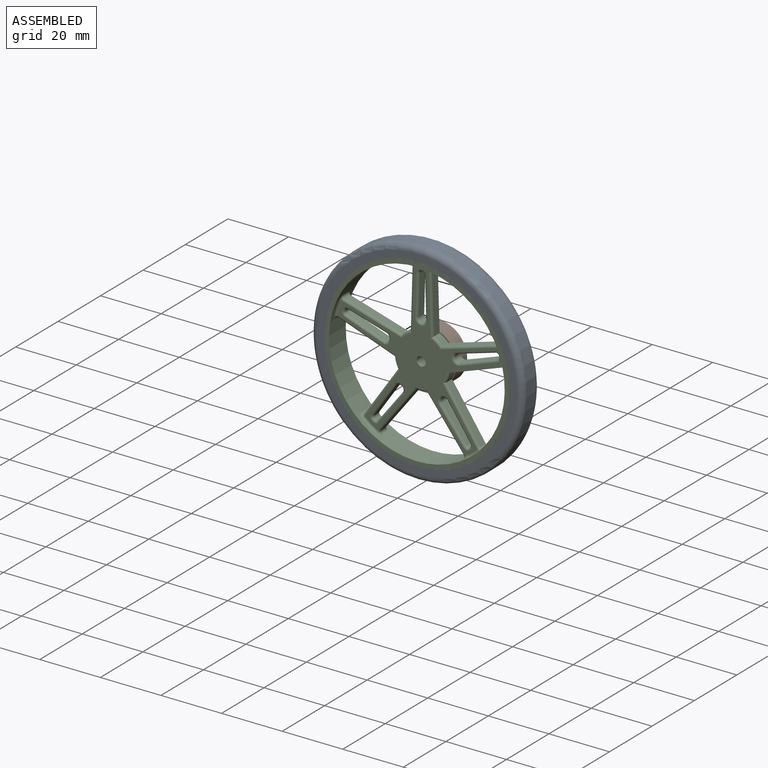
[diagram: assembled view]
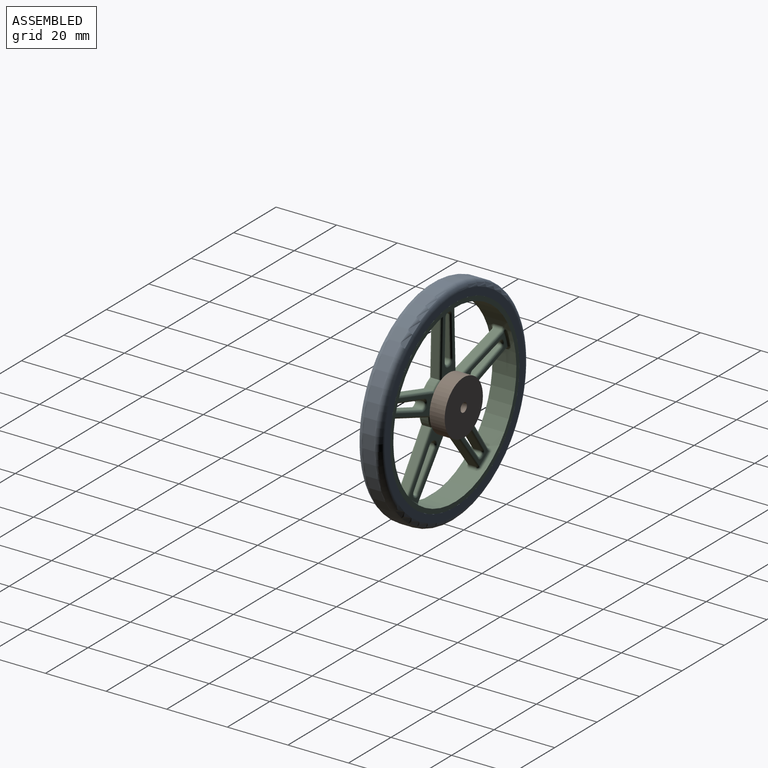
[diagram: assembled view, second angle]
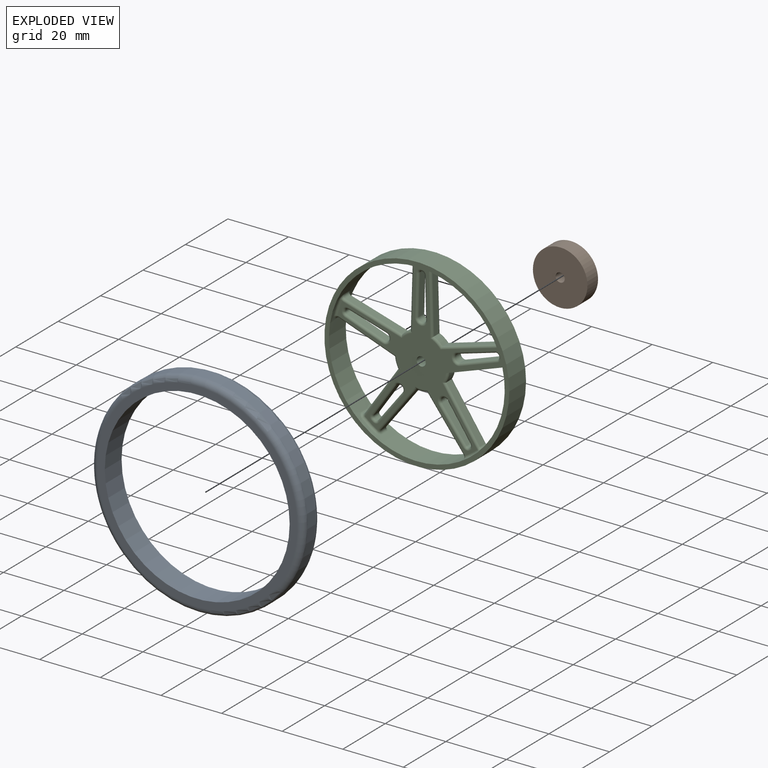
[diagram: exploded view]
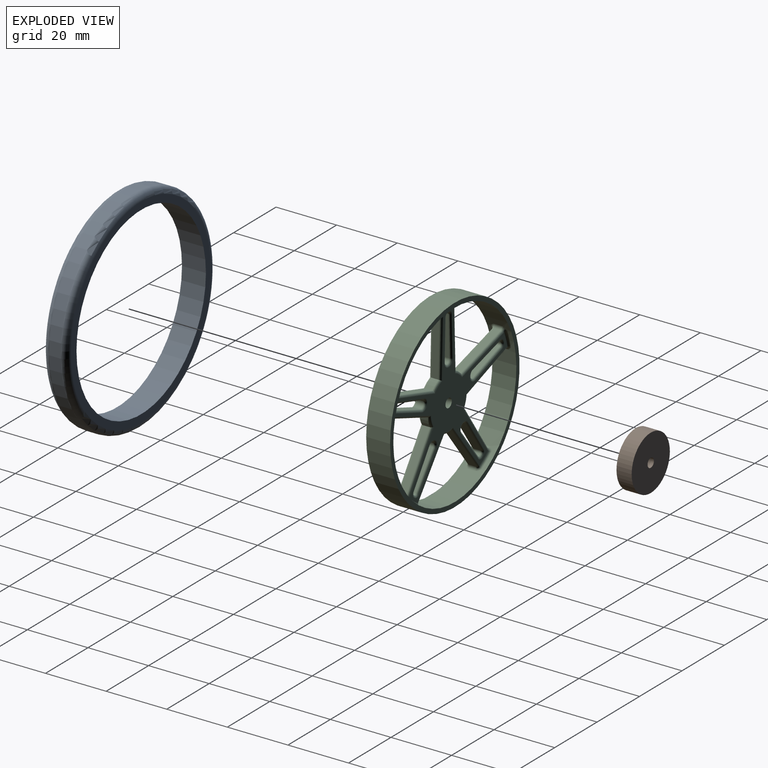
[diagram: exploded view, second angle]
ASSEMBLY  parts=3 mates=2
PART A: 6 faces, bbox 75.8x7.9x75.8 mm
  f0: cylinder r=30.5mm len=61mm, axis (0,1,0), area 1513.9mm2, adj f2,f3
  f1: cylinder r=35mm len=70mm, axis (0,1,0), area 857.7mm2, adj f4,f5
  f2: plane 66x66mm, normal (0,-1,0), area 498.7mm2, adj f0,f5
  f3: plane 66x66mm, normal (0,1,0), area 498.7mm2, adj f0,f4
  f4: torus R=33mm, axis (0,-1,0), area 676.5mm2, adj f1,f3
  f5: torus R=33mm, axis (0,-1,0), area 676.5mm2, adj f1,f2
PART B: 4 faces, bbox 18x5x18 mm
  f0: cylinder r=9mm len=18mm, axis (0,-1,0), area 282.7mm2, adj f2,f3
  f1: cylinder r=1.5mm len=5mm, axis (0,-1,0), area 47.1mm2, adj f2,f3
  f2: plane 18x18mm, normal (0,1,0), area 247.4mm2, adj f0,f1
  f3: plane 18x18mm, normal (0,-1,0), area 247.4mm2, adj f0,f1
PART C: 229 faces, bbox 61.2x8.1x61.2 mm
  f0: cylinder r=29mm len=58mm, axis (0,1,0), area 1228.5mm2, adj f2,f3,f4,f5,f9,f10,f14,f15
  f1: cylinder r=30.5mm len=61mm, axis (0,1,0), area 1513.9mm2, adj f2,f3
  f2: plane 61x61mm, normal (0,-1,0), area 280.4mm2, adj f0,f1
  f3: plane 61x61mm, normal (0,1,0), area 280.4mm2, adj f0,f1
  f4: cylinder r=0.94mm len=3.8mm, axis (0,1,0), area 4.8mm2, adj f0,f69,f70,f104,f146,f148
  f5: cylinder r=0.94mm len=2.3mm, axis (0,1,0), area 3.4mm2, adj f0,f6,f106,f108,f140,f142
  f6: plane 18.85x5.52mm, normal (-0.28,0,0.96), area 45.2mm2, adj f5,f7,f107,f138
  f7: cylinder r=9mm len=2.87mm, axis (0,1,0), area 8.2mm2, adj f6,f8,f105,f136
  f8: plane 19.63x2.3mm, normal (1,0,0.03), area 45.2mm2, adj f7,f9,f103,f134
  f9: cylinder r=0.94mm len=2.3mm, axis (0,1,0), area 3.4mm2, adj f0,f8,f101,f102,f130,f132
  f10: cylinder r=0.94mm len=2.3mm, axis (0,1,0), area 3.4mm2, adj f0,f11,f98,f99,f124,f126
  f11: plane 19.63x2.3mm, normal (-1,0,0.03), area 45.2mm2, adj f10,f12,f97,f122
  f12: cylinder r=9mm len=2.87mm, axis (0,1,0), area 8.2mm2, adj f11,f13,f96,f120
  f13: plane 18.85x5.52mm, normal (0.28,0,0.96), area 45.2mm2, adj f12,f14,f95,f118
  f14: cylinder r=0.94mm len=2.3mm, axis (0,1,0), area 3.4mm2, adj f0,f13,f93,f94,f114,f116
  f15: cylinder r=0.94mm len=2.3mm, axis (0,1,0), area 3.4mm2, adj f0,f16,f90,f91,f109,f110
  f16: plane 18.5x6.61mm, normal (-0.34,0,-0.94), area 45.2mm2, adj f15,f17,f89,f111
  f17: cylinder r=9mm len=3.38mm, axis (0,1,0), area 8.2mm2, adj f16,f18,f88,f113
  f18: plane 16.22x11.08mm, normal (-0.83,0,0.56), area 45.2mm2, adj f17,f19,f87,f115
  f19: cylinder r=0.94mm len=2.3mm, axis (0,1,0), area 3.4mm2, adj f0,f18,f85,f86,f117,f119
  f20: cylinder r=0.94mm len=2.3mm, axis (0,1,0), area 3.4mm2, adj f0,f21,f82,f83,f123,f125
  f21: plane 15.55x12mm, normal (0.79,0,-0.61), area 45.2mm2, adj f20,f22,f81,f127
  f22: cylinder r=9mm len=3.55mm, axis (0,1,0), area 8.2mm2, adj f21,f23,f80,f129
  f23: plane 15.55x12mm, normal (-0.79,0,-0.61), area 45.2mm2, adj f22,f24,f79,f131
  f24: cylinder r=0.94mm len=2.3mm, axis (0,1,0), area 3.4mm2, adj f0,f23,f77,f78,f133,f135
  f25: cylinder r=0.94mm len=2.3mm, axis (0,1,0), area 3.4mm2, adj f0,f26,f74,f75,f139,f141
  f26: plane 16.22x11.08mm, normal (0.83,0,0.56), area 45.2mm2, adj f25,f27,f73,f143
  f27: cylinder r=9mm len=3.38mm, axis (0,1,0), area 8.2mm2, adj f26,f69,f72,f145
  f28: plane 13.21x2.3mm, normal (-1,0,-0.03), area 30.4mm2, adj f29,f63,f149,f196
  f29: cylinder r=1.3mm len=2.3mm, axis (0,1,0), area 4.8mm2, adj f28,f30,f150,f194
  f30: cylinder r=10.61mm len=2.3mm, axis (0,1,0), area 0.1mm2, adj f29,f31,f152,f192
  f31: cylinder r=1.3mm len=2.3mm, axis (0,1,0), area 4.8mm2, adj f30,f32,f154,f190
  f32: plane 13.21x2.3mm, normal (1,0,-0.03), area 30.4mm2, adj f31,f33,f156,f189
  f33: cylinder r=0.8mm len=2.3mm, axis (0,1,0), area 2.8mm2, adj f32,f34,f155,f191
  f34: cylinder r=26.7mm len=2.3mm, axis (0,1,0), area 0.6mm2, adj f33,f63,f153,f193
  f35: cylinder r=0.8mm len=2.3mm, axis (0,1,0), area 2.8mm2, adj f36,f64,f163,f201
  f36: cylinder r=26.7mm len=2.3mm, axis (0,1,0), area 0.6mm2, adj f35,f37,f161,f203
  f37: cylinder r=0.8mm len=2.3mm, axis (0,1,0), area 2.8mm2, adj f36,f38,f159,f204
  f38: plane 12.68x3.72mm, normal (-0.28,0,-0.96), area 30.4mm2, adj f37,f39,f157,f202
  f39: cylinder r=1.3mm len=2.3mm, axis (0,1,0), area 4.8mm2, adj f38,f40,f158,f200
  f40: cylinder r=10.61mm len=2.3mm, axis (0,1,0), area 0.1mm2, adj f39,f41,f160,f198
  f41: cylinder r=1.3mm len=2.3mm, axis (0,1,0), area 4.8mm2, adj f40,f64,f162,f197
  f42: cylinder r=0.8mm len=2.3mm, axis (0,1,0), area 2.8mm2, adj f43,f65,f171,f207
  f43: cylinder r=26.7mm len=2.3mm, axis (0,1,0), area 0.6mm2, adj f42,f44,f169,f209
  f44: cylinder r=0.8mm len=2.3mm, axis (0,1,0), area 2.8mm2, adj f43,f45,f167,f211
  f45: plane 10.91x7.45mm, normal (0.83,0,-0.56), area 30.4mm2, adj f44,f46,f165,f212
  f46: cylinder r=1.3mm len=2.3mm, axis (0,1,0), area 4.8mm2, adj f45,f47,f166,f210
  f47: cylinder r=10.61mm len=2.3mm, axis (0,1,0), area 0.1mm2, adj f46,f48,f168,f208
  f48: cylinder r=1.3mm len=2.3mm, axis (0,1,0), area 4.8mm2, adj f47,f65,f170,f206
  f49: cylinder r=0.8mm len=2.3mm, axis (0,1,0), area 2.8mm2, adj f50,f66,f175,f215
  f50: cylinder r=26.7mm len=2.3mm, axis (0,1,0), area 0.6mm2, adj f49,f51,f177,f217
  f51: cylinder r=0.8mm len=2.3mm, axis (0,1,0), area 2.8mm2, adj f50,f52,f179,f219
  f52: plane 10.46x8.08mm, normal (0.79,0,0.61), area 30.4mm2, adj f51,f53,f180,f220
  f53: cylinder r=1.3mm len=2.3mm, axis (0,1,0), area 4.8mm2, adj f52,f54,f178,f218
  f54: cylinder r=10.61mm len=2.3mm, axis (0,1,0), area 0.1mm2, adj f53,f55,f176,f216
  f55: cylinder r=1.3mm len=2.3mm, axis (0,1,0), area 4.8mm2, adj f54,f66,f174,f214
  f56: cylinder r=0.8mm len=2.3mm, axis (0,1,0), area 2.8mm2, adj f57,f67,f187,f223
  f57: cylinder r=26.7mm len=2.3mm, axis (0,1,0), area 0.6mm2, adj f56,f58,f185,f225
  f58: cylinder r=0.8mm len=2.3mm, axis (0,1,0), area 2.8mm2, adj f57,f59,f183,f227
  f59: plane 12.44x4.45mm, normal (-0.34,0,0.94), area 30.4mm2, adj f58,f60,f181,f228
  f60: cylinder r=1.3mm len=2.3mm, axis (0,1,0), area 4.8mm2, adj f59,f61,f182,f226
  f61: cylinder r=10.61mm len=2.3mm, axis (0,1,0), area 0.1mm2, adj f60,f62,f184,f224
  f62: cylinder r=1.3mm len=2.3mm, axis (0,1,0), area 4.8mm2, adj f61,f67,f186,f222
  f63: cylinder r=0.8mm len=2.3mm, axis (0,1,0), area 2.8mm2, adj f28,f34,f151,f195
  f64: plane 12.44x4.45mm, normal (0.34,0,0.94), area 30.4mm2, adj f35,f41,f164,f199
  f65: plane 10.46x8.08mm, normal (-0.79,0,0.61), area 30.4mm2, adj f42,f48,f172,f205
  f66: plane 10.91x7.45mm, normal (-0.83,0,-0.56), area 30.4mm2, adj f49,f55,f173,f213
  f67: plane 12.68x3.72mm, normal (0.28,0,-0.96), area 30.4mm2, adj f56,f62,f188,f221
  f68: cylinder r=1.5mm len=3.8mm, axis (0,1,0), area 35.8mm2, adj f70,f71
  f69: plane 19.47x7.07mm, normal (0.34,0,-0.94), area 60mm2, adj f4,f27,f70,f72,f147
  f70: plane 55.22x52.47mm, normal (0,-1,0), area 466mm2, adj f4,f68,f69,f72,f73,f74,f76,f78
  f71: plane 55.06x52.47mm, normal (0,1,0), area 450.5mm2, adj f68,f109,f111,f112,f113,f115,f116,f117
  f72: torus R=8.25mm, axis (0,-1,0), area 4.1mm2, adj f27,f69,f70,f73
  f73: cylinder r=0.75mm len=17.06mm, axis (0.56,0,-0.83), area 23.4mm2, adj f26,f70,f72,f74
  f74: torus R=1.69mm, axis (0,-1,0), area 0.7mm2, adj f25,f70,f73,f75
  f75: bspline ~1.85x1.77mm, area 1.6mm2, adj f0,f25,f74,f76
  f76: torus R=28.25mm, axis (0,-1,0), area 5.9mm2, adj f0,f70,f75,f77
  f77: bspline ~1.82x1.75mm, area 1.6mm2, adj f0,f24,f76,f78
  f78: torus R=1.69mm, axis (0,-1,0), area 0.7mm2, adj f24,f70,f77,f79
  f79: cylinder r=0.75mm len=16.41mm, axis (-0.61,0,0.79), area 23.4mm2, adj f23,f70,f78,f80
  f80: torus R=8.25mm, axis (0,-1,0), area 4.6mm2, adj f22,f70,f79,f81
  f81: cylinder r=0.75mm len=16.41mm, axis (-0.61,0,-0.79), area 23.4mm2, adj f21,f70,f80,f82
  f82: torus R=1.69mm, axis (0,-1,0), area 0.7mm2, adj f20,f70,f81,f83
  f83: bspline ~1.77x1.54mm, area 1.6mm2, adj f0,f20,f82,f84
  f84: torus R=28.25mm, axis (0,-1,0), area 5.9mm2, adj f0,f70,f83,f85
  f85: bspline ~1.87x1.82mm, area 1.6mm2, adj f0,f19,f84,f86
  f86: torus R=1.69mm, axis (0,-1,0), area 0.7mm2, adj f19,f70,f85,f87
  f87: cylinder r=0.75mm len=17.06mm, axis (0.56,0,0.83), area 23.4mm2, adj f18,f70,f86,f88
  f88: torus R=8.25mm, axis (0,-1,0), area 4.6mm2, adj f17,f70,f87,f89
  f89: cylinder r=0.75mm len=19.22mm, axis (-0.94,0,0.34), area 23.4mm2, adj f16,f70,f88,f90
  f90: torus R=1.69mm, axis (0,-1,0), area 0.7mm2, adj f15,f70,f89,f91
  f91: bspline ~1.77x1.73mm, area 1.6mm2, adj f0,f15,f90,f92
  f92: torus R=28.25mm, axis (0,-1,0), area 5.9mm2, adj f0,f70,f91,f93
  f93: bspline ~1.98x1.82mm, area 1.6mm2, adj f0,f14,f92,f94
  f94: torus R=1.69mm, axis (0,-1,0), area 0.7mm2, adj f14,f70,f93,f95
  f95: cylinder r=0.75mm len=19.55mm, axis (0.96,0,-0.28), area 23.4mm2, adj f13,f70,f94,f96
  f96: torus R=8.25mm, axis (0,-1,0), area 4.6mm2, adj f12,f70,f95,f97
  f97: cylinder r=0.75mm len=20.16mm, axis (0.03,0,1), area 23.4mm2, adj f11,f70,f96,f98
  f98: torus R=1.69mm, axis (0,-1,0), area 0.7mm2, adj f10,f70,f97,f99
  f99: bspline ~1.97x1.77mm, area 1.6mm2, adj f0,f10,f98,f100
  f100: torus R=28.25mm, axis (0,-1,0), area 5.9mm2, adj f0,f70,f99,f101
  f101: bspline ~2x1.82mm, area 1.6mm2, adj f0,f9,f100,f102
  f102: torus R=1.69mm, axis (0,-1,0), area 0.7mm2, adj f9,f70,f101,f103
  f103: cylinder r=0.75mm len=20.16mm, axis (0.03,0,-1), area 23.4mm2, adj f8,f70,f102,f105
  f104: torus R=28.25mm, axis (0,-1,0), area 7.3mm2, adj f0,f4,f70,f106
  f105: torus R=8.25mm, axis (0,-1,0), area 4.6mm2, adj f7,f70,f103,f107
  f106: bspline ~1.86x1.77mm, area 1.6mm2, adj f0,f5,f104,f108
  f107: cylinder r=0.75mm len=19.55mm, axis (0.96,0,0.28), area 23.4mm2, adj f6,f70,f105,f108
  f108: torus R=1.69mm, axis (0,-1,0), area 0.7mm2, adj f5,f70,f106,f107
  f109: torus R=1.69mm, axis (0,-1,0), area 0.7mm2, adj f15,f71,f110,f111
  f110: bspline ~1.97x1.82mm, area 1.6mm2, adj f0,f15,f109,f112
  f111: cylinder r=0.75mm len=19.22mm, axis (0.94,0,-0.34), area 23.4mm2, adj f16,f71,f109,f113
  f112: torus R=28.25mm, axis (0,-1,0), area 5.9mm2, adj f0,f71,f110,f114
  f113: torus R=8.25mm, axis (0,-1,0), area 4.6mm2, adj f17,f71,f111,f115
  f114: bspline ~1.86x1.77mm, area 1.6mm2, adj f0,f14,f112,f116
  f115: cylinder r=0.75mm len=17.06mm, axis (-0.56,0,-0.83), area 23.4mm2, adj f18,f71,f113,f117
  f116: torus R=1.69mm, axis (0,-1,0), area 0.7mm2, adj f14,f71,f114,f118
  f117: torus R=1.69mm, axis (0,-1,0), area 0.7mm2, adj f19,f71,f115,f119
  f118: cylinder r=0.75mm len=19.55mm, axis (-0.96,0,0.28), area 23.4mm2, adj f13,f71,f116,f120
  f119: bspline ~1.85x1.77mm, area 1.6mm2, adj f0,f19,f117,f121
  f120: torus R=8.25mm, axis (0,-1,0), area 4.6mm2, adj f12,f71,f118,f122
  f121: torus R=28.25mm, axis (0,-1,0), area 5.9mm2, adj f0,f71,f119,f123
  f122: cylinder r=0.75mm len=20.16mm, axis (-0.03,0,-1), area 23.4mm2, adj f11,f71,f120,f124
  f123: bspline ~1.82x1.75mm, area 1.6mm2, adj f0,f20,f121,f125
  f124: torus R=1.69mm, axis (0,-1,0), area 0.7mm2, adj f10,f71,f122,f126
  f125: torus R=1.69mm, axis (0,-1,0), area 0.7mm2, adj f20,f71,f123,f127
  f126: bspline ~2x1.82mm, area 1.6mm2, adj f0,f10,f124,f128
  f127: cylinder r=0.75mm len=16.41mm, axis (0.61,0,0.79), area 23.4mm2, adj f21,f71,f125,f129
  f128: torus R=28.25mm, axis (0,-1,0), area 5.9mm2, adj f0,f71,f126,f130
  f129: torus R=8.25mm, axis (0,-1,0), area 4.6mm2, adj f22,f71,f127,f131
  f130: bspline ~1.97x1.77mm, area 1.6mm2, adj f0,f9,f128,f132
  f131: cylinder r=0.75mm len=16.41mm, axis (0.61,0,-0.79), area 23.4mm2, adj f23,f71,f129,f133
  f132: torus R=1.69mm, axis (0,-1,0), area 0.7mm2, adj f9,f71,f130,f134
  f133: torus R=1.69mm, axis (0,-1,0), area 0.7mm2, adj f24,f71,f131,f135
  f134: cylinder r=0.75mm len=20.16mm, axis (-0.03,0,1), area 23.4mm2, adj f8,f71,f132,f136
  f135: bspline ~1.77x1.54mm, area 1.6mm2, adj f0,f24,f133,f137
  f136: torus R=8.25mm, axis (0,-1,0), area 4.6mm2, adj f7,f71,f134,f138
  f137: torus R=28.25mm, axis (0,-1,0), area 5.9mm2, adj f0,f71,f135,f139
  f138: cylinder r=0.75mm len=19.55mm, axis (-0.96,0,-0.28), area 23.4mm2, adj f6,f71,f136,f140
  f139: bspline ~1.87x1.82mm, area 1.6mm2, adj f0,f25,f137,f141
  f140: torus R=1.69mm, axis (0,-1,0), area 0.7mm2, adj f5,f71,f138,f142
  f141: torus R=1.69mm, axis (0,-1,0), area 0.7mm2, adj f25,f71,f139,f143
  f142: bspline ~1.98x1.82mm, area 1.6mm2, adj f0,f5,f140,f144
  f143: cylinder r=0.75mm len=17.06mm, axis (-0.56,0,0.83), area 23.4mm2, adj f26,f71,f141,f145
  f144: torus R=28.25mm, axis (0,-1,0), area 5.9mm2, adj f0,f71,f142,f146
  f145: torus R=8.25mm, axis (0,-1,0), area 4.6mm2, adj f27,f71,f143,f147
  f146: bspline ~1.77x1.73mm, area 1.6mm2, adj f0,f4,f144,f148
  f147: cylinder r=0.75mm len=19.22mm, axis (0.94,0,0.34), area 23.4mm2, adj f69,f71,f145,f148
  f148: torus R=1.69mm, axis (0,-1,0), area 0.7mm2, adj f4,f71,f146,f147
  f149: cylinder r=0.75mm len=13.23mm, axis (0.03,0,-1), area 15.6mm2, adj f28,f71,f150,f151
  f150: torus R=2.05mm, axis (0,-1,0), area 3mm2, adj f29,f71,f149,f152
  f151: torus R=1.55mm, axis (0,-1,0), area 1.9mm2, adj f63,f71,f149,f153
  f152: torus R=9.86mm, axis (0,-1,0), area 0mm2, adj f30,f71,f150,f154
  f153: torus R=27.45mm, axis (0,-1,0), area 0.3mm2, adj f34,f71,f151,f155
  f154: torus R=2.05mm, axis (0,-1,0), area 3mm2, adj f31,f71,f152,f156
  f155: torus R=1.55mm, axis (0,-1,0), area 1.9mm2, adj f33,f71,f153,f156
  f156: cylinder r=0.75mm len=13.23mm, axis (0.03,0,1), area 15.6mm2, adj f32,f71,f154,f155
  f157: cylinder r=0.75mm len=12.89mm, axis (0.96,0,-0.28), area 15.6mm2, adj f38,f71,f158,f159
  f158: torus R=2.05mm, axis (0,-1,0), area 3mm2, adj f39,f71,f157,f160
  f159: torus R=1.55mm, axis (0,-1,0), area 1.9mm2, adj f37,f71,f157,f161
  f160: torus R=9.86mm, axis (0,-1,0), area 0mm2, adj f40,f71,f158,f162
  f161: torus R=27.45mm, axis (0,-1,0), area 0.3mm2, adj f36,f71,f159,f163
  f162: torus R=2.05mm, axis (0,-1,0), area 3mm2, adj f41,f71,f160,f164
  f163: torus R=1.55mm, axis (0,-1,0), area 1.9mm2, adj f35,f71,f161,f164
  f164: cylinder r=0.75mm len=12.7mm, axis (-0.94,0,0.34), area 15.6mm2, adj f64,f71,f162,f163
  f165: cylinder r=0.75mm len=11.34mm, axis (0.56,0,0.83), area 15.6mm2, adj f45,f71,f166,f167
  f166: torus R=2.05mm, axis (0,-1,0), area 3mm2, adj f46,f71,f165,f168
  f167: torus R=1.55mm, axis (0,-1,0), area 1.9mm2, adj f44,f71,f165,f169
  f168: torus R=9.86mm, axis (0,-1,0), area 0mm2, adj f47,f71,f166,f170
  f169: torus R=27.45mm, axis (0,-1,0), area 0.3mm2, adj f43,f71,f167,f171
  f170: torus R=2.05mm, axis (0,-1,0), area 3mm2, adj f48,f71,f168,f172
  f171: torus R=1.55mm, axis (0,-1,0), area 1.9mm2, adj f42,f71,f169,f172
  f172: cylinder r=0.75mm len=10.92mm, axis (-0.61,0,-0.79), area 15.6mm2, adj f65,f71,f170,f171
  f173: cylinder r=0.75mm len=11.34mm, axis (0.56,0,-0.83), area 15.6mm2, adj f66,f71,f174,f175
  f174: torus R=2.05mm, axis (0,-1,0), area 3mm2, adj f55,f71,f173,f176
  f175: torus R=1.55mm, axis (0,-1,0), area 1.9mm2, adj f49,f71,f173,f177
  f176: torus R=9.86mm, axis (0,-1,0), area 0mm2, adj f54,f71,f174,f178
  f177: torus R=27.45mm, axis (0,-1,0), area 0.3mm2, adj f50,f71,f175,f179
  f178: torus R=2.05mm, axis (0,-1,0), area 3mm2, adj f53,f71,f176,f180
  f179: torus R=1.55mm, axis (0,-1,0), area 1.9mm2, adj f51,f71,f177,f180
  f180: cylinder r=0.75mm len=10.92mm, axis (-0.61,0,0.79), area 15.6mm2, adj f52,f71,f178,f179
  f181: cylinder r=0.75mm len=12.7mm, axis (-0.94,0,-0.34), area 15.6mm2, adj f59,f71,f182,f183
  f182: torus R=2.05mm, axis (0,-1,0), area 3mm2, adj f60,f71,f181,f184
  f183: torus R=1.55mm, axis (0,-1,0), area 1.9mm2, adj f58,f71,f181,f185
  f184: torus R=9.86mm, axis (0,-1,0), area 0mm2, adj f61,f71,f182,f186
  f185: torus R=27.45mm, axis (0,-1,0), area 0.3mm2, adj f57,f71,f183,f187
  f186: torus R=2.05mm, axis (0,-1,0), area 3mm2, adj f62,f71,f184,f188
  f187: torus R=1.55mm, axis (0,-1,0), area 1.9mm2, adj f56,f71,f185,f188
  f188: cylinder r=0.75mm len=12.89mm, axis (0.96,0,0.28), area 15.6mm2, adj f67,f71,f186,f187
  f189: cylinder r=0.75mm len=13.23mm, axis (-0.03,0,-1), area 15.6mm2, adj f32,f70,f190,f191
  f190: torus R=2.05mm, axis (0,-1,0), area 3mm2, adj f31,f70,f189,f192
  f191: torus R=1.55mm, axis (0,-1,0), area 1.9mm2, adj f33,f70,f189,f193
  f192: torus R=9.86mm, axis (0,-1,0), area 0mm2, adj f30,f70,f190,f194
  f193: torus R=27.45mm, axis (0,-1,0), area 0.3mm2, adj f34,f70,f191,f195
  f194: torus R=2.05mm, axis (0,-1,0), area 3mm2, adj f29,f70,f192,f196
  f195: torus R=1.55mm, axis (0,-1,0), area 1.9mm2, adj f63,f70,f193,f196
  f196: cylinder r=0.75mm len=13.23mm, axis (-0.03,0,1), area 15.6mm2, adj f28,f70,f194,f195
  f197: torus R=2.05mm, axis (0,-1,0), area 3mm2, adj f41,f70,f198,f199
  f198: torus R=9.86mm, axis (0,-1,0), area 0mm2, adj f40,f70,f197,f200
  f199: cylinder r=0.75mm len=12.7mm, axis (0.94,0,-0.34), area 15.6mm2, adj f64,f70,f197,f201
  f200: torus R=2.05mm, axis (0,-1,0), area 3mm2, adj f39,f70,f198,f202
  f201: torus R=1.55mm, axis (0,-1,0), area 1.9mm2, adj f35,f70,f199,f203
  f202: cylinder r=0.75mm len=12.89mm, axis (-0.96,0,0.28), area 15.6mm2, adj f38,f70,f200,f204
  f203: torus R=27.45mm, axis (0,-1,0), area 0.3mm2, adj f36,f70,f201,f204
  f204: torus R=1.55mm, axis (0,-1,0), area 1.9mm2, adj f37,f70,f202,f203
  f205: cylinder r=0.75mm len=10.92mm, axis (0.61,0,0.79), area 15.6mm2, adj f65,f70,f206,f207
  f206: torus R=2.05mm, axis (0,-1,0), area 3mm2, adj f48,f70,f205,f208
  f207: torus R=1.55mm, axis (0,-1,0), area 1.9mm2, adj f42,f70,f205,f209
  f208: torus R=9.86mm, axis (0,-1,0), area 0mm2, adj f47,f70,f206,f210
  f209: torus R=27.45mm, axis (0,-1,0), area 0.3mm2, adj f43,f70,f207,f211
  f210: torus R=2.05mm, axis (0,-1,0), area 3mm2, adj f46,f70,f208,f212
  f211: torus R=1.55mm, axis (0,-1,0), area 1.9mm2, adj f44,f70,f209,f212
  f212: cylinder r=0.75mm len=11.34mm, axis (-0.56,0,-0.83), area 15.6mm2, adj f45,f70,f210,f211
  f213: cylinder r=0.75mm len=11.34mm, axis (-0.56,0,0.83), area 15.6mm2, adj f66,f70,f214,f215
  f214: torus R=2.05mm, axis (0,-1,0), area 3mm2, adj f55,f70,f213,f216
  f215: torus R=1.55mm, axis (0,-1,0), area 1.9mm2, adj f49,f70,f213,f217
  f216: torus R=9.86mm, axis (0,-1,0), area 0mm2, adj f54,f70,f214,f218
  f217: torus R=27.45mm, axis (0,-1,0), area 0.3mm2, adj f50,f70,f215,f219
  f218: torus R=2.05mm, axis (0,-1,0), area 3mm2, adj f53,f70,f216,f220
  f219: torus R=1.55mm, axis (0,-1,0), area 1.9mm2, adj f51,f70,f217,f220
  f220: cylinder r=0.75mm len=10.92mm, axis (0.61,0,-0.79), area 15.6mm2, adj f52,f70,f218,f219
  f221: cylinder r=0.75mm len=12.89mm, axis (-0.96,0,-0.28), area 15.6mm2, adj f67,f70,f222,f223
  f222: torus R=2.05mm, axis (0,-1,0), area 3mm2, adj f62,f70,f221,f224
  f223: torus R=1.55mm, axis (0,-1,0), area 1.9mm2, adj f56,f70,f221,f225
  f224: torus R=9.86mm, axis (0,-1,0), area 0mm2, adj f61,f70,f222,f226
  f225: torus R=27.45mm, axis (0,-1,0), area 0.3mm2, adj f57,f70,f223,f227
  f226: torus R=2.05mm, axis (0,-1,0), area 3mm2, adj f60,f70,f224,f228
  f227: torus R=1.55mm, axis (0,-1,0), area 1.9mm2, adj f58,f70,f225,f228
  f228: cylinder r=0.75mm len=12.7mm, axis (0.94,0,0.34), area 15.6mm2, adj f59,f70,f226,f227
PLACE A t=(0,-6.9,0)mm
PLACE B t=(0,-6.9,0)mm
PLACE C t=(0,-6.9,0)mm
MATE fastened B.f0 <-> C.f0  axis (0,-1,0) through (0,-5,0)mm
MATE fastened C.f0 <-> A.f0  axis (0,1,0) through (0,-6.9,0)mm
